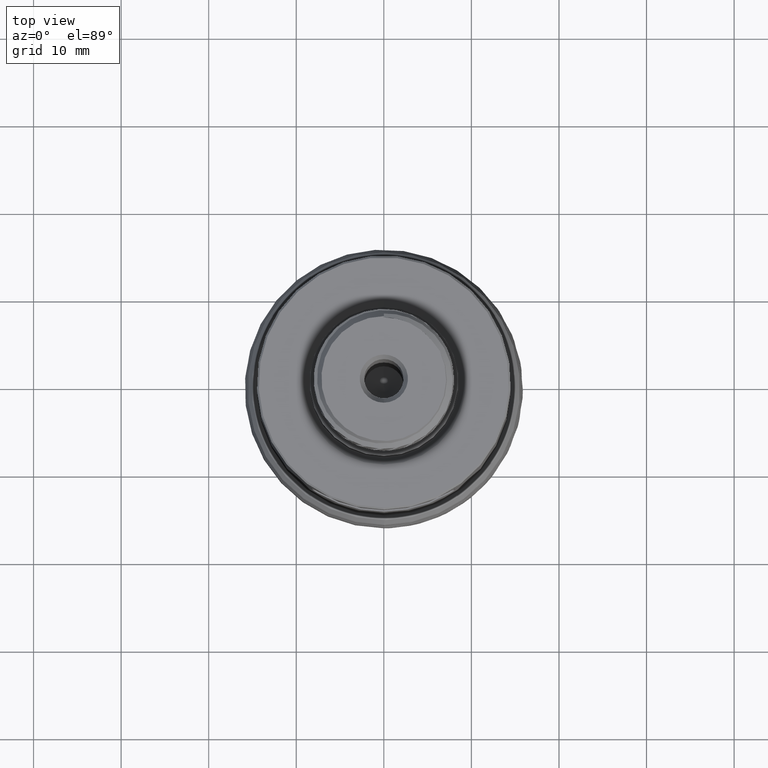
[diagram: clean part render]
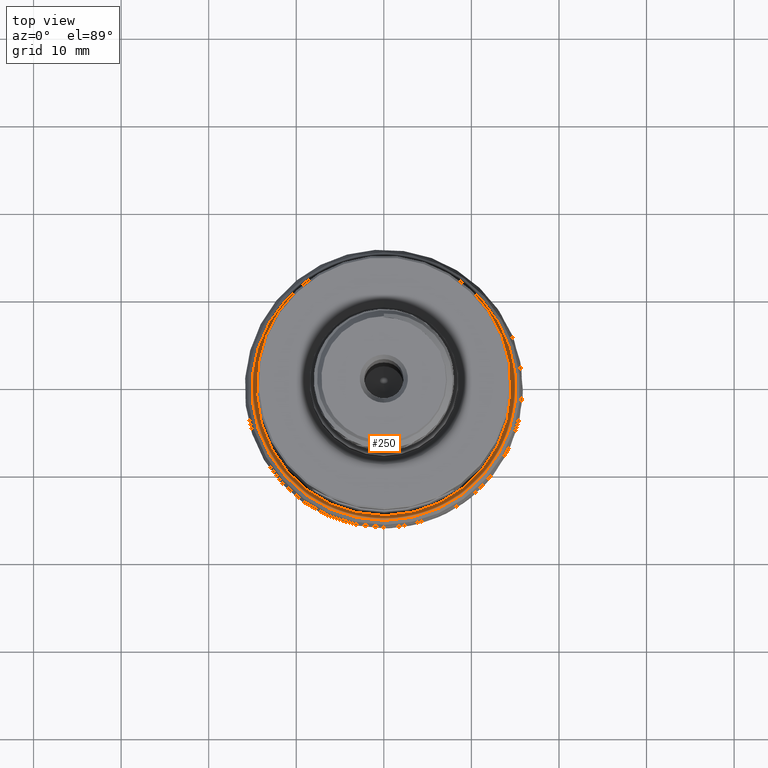
[diagram: same view with one face highlighted and labeled with its STEP entity id]
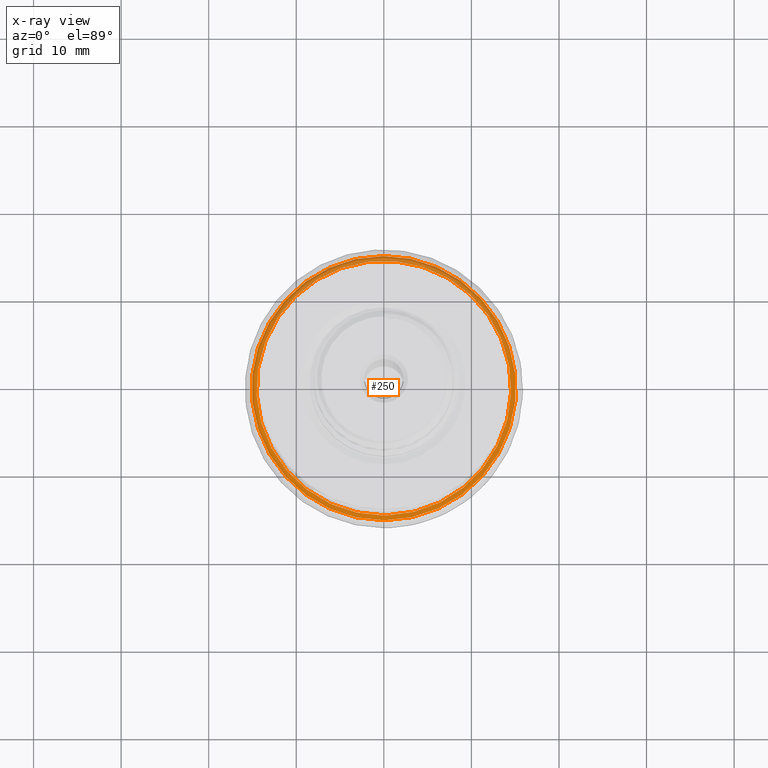
[diagram: x-ray of the same camera — body ghosted, the highlighted face saturated]
A machine part, top view. The second image highlights one B-rep face of the part: STEP entity #250.
The next image is the same camera in x-ray: the body ghosted, the highlighted face saturated — about 32% of this face is hidden behind the body in this view.
In plain terms, the highlighted face is a SurfaceOfRevolution surface.
Its self-contained STEP definition (entity closure, byte-faithful):
#113=SURFACE_OF_REVOLUTION('',#962,#134);
#134=AXIS1_PLACEMENT('',#3539,#1253);
#250=ADVANCED_FACE('',(#380,#381),#113,.F.);
#380=FACE_BOUND('',#489,.T.);
#381=FACE_BOUND('',#490,.T.);
#489=EDGE_LOOP('',(#667));
#490=EDGE_LOOP('',(#668));
#667=ORIENTED_EDGE('',*,*,#848,.T.);
#668=ORIENTED_EDGE('',*,*,#849,.F.);
#759=VERTEX_POINT('',#3523);
#760=VERTEX_POINT('',#3527);
#848=EDGE_CURVE('',#759,#759,#902,.T.);
#849=EDGE_CURVE('',#760,#760,#903,.T.);
#902=CIRCLE('',#1053,15.08113248755);
#903=CIRCLE('',#1054,14.5373369329055);
#962=B_SPLINE_CURVE_WITH_KNOTS('',3,(#3528,#3529,#3530,#3531,#3532,#3533,
#3534,#3535,#3536,#3537,#3538),.UNSPECIFIED.,.F.,.F.,(4,1,1,1,1,1,1,1,4),
(0.,0.125,0.25,0.375,0.5,0.625,0.75,0.875,1.),.UNSPECIFIED.);
#1053=AXIS2_PLACEMENT_3D('',#3522,#1247,#1248);
#1054=AXIS2_PLACEMENT_3D('',#3526,#1251,#1252);
#1247=DIRECTION('',(0.,1.17145536458252E-15,1.));
#1248=DIRECTION('',(0.,-1.,1.15026074958819E-15));
#1251=DIRECTION('',(0.,1.17145536458252E-15,1.));
#1252=DIRECTION('',(0.,-1.,1.19328834709075E-15));
#1253=DIRECTION('',(0.,1.17145536458252E-15,1.));
#3522=CARTESIAN_POINT('',(0.,8.39143332507452E-15,7.16325485270624));
#3523=CARTESIAN_POINT('',(0.,-15.08113248755,7.16325485270625));
#3526=CARTESIAN_POINT('',(0.,8.56752907264484E-15,7.31357705267591));
#3527=CARTESIAN_POINT('',(0.,-14.5373369329055,7.31357705267593));
#3528=CARTESIAN_POINT('',(14.5078863247428,-0.924881601267918,7.31357767552307));
#3529=CARTESIAN_POINT('',(14.5285998355466,-0.922048055711143,7.32436647499036));
#3530=CARTESIAN_POINT('',(14.5733629413024,-0.91624267395791,7.34306145114348));
#3531=CARTESIAN_POINT('',(14.6488331121998,-0.908720810429543,7.35928716837053));
#3532=CARTESIAN_POINT('',(14.7294567840451,-0.904011423314339,7.36109210093274));
#3533=CARTESIAN_POINT('',(14.8107940617223,-0.903361411775654,7.34713466658621));
#3534=CARTESIAN_POINT('',(14.887854087393,-0.907255798489309,7.31778597619267));
#3535=CARTESIAN_POINT('',(14.9560588680527,-0.915205491275766,7.27514614833195));
#3536=CARTESIAN_POINT('',(15.0120869946738,-0.925830903523272,7.22253313163272));
#3537=CARTESIAN_POINT('',(15.0402357430879,-0.933387163662997,7.18331835121246));
#3538=CARTESIAN_POINT('',(15.0520008251134,-0.936924899777042,7.16325485270624));
#3539=CARTESIAN_POINT('',(0.,0.,0.));